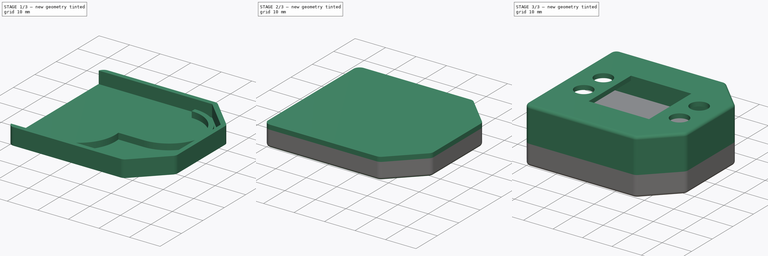
[diagram: build sequence overview — one tinted view per stage of 3, left to right]
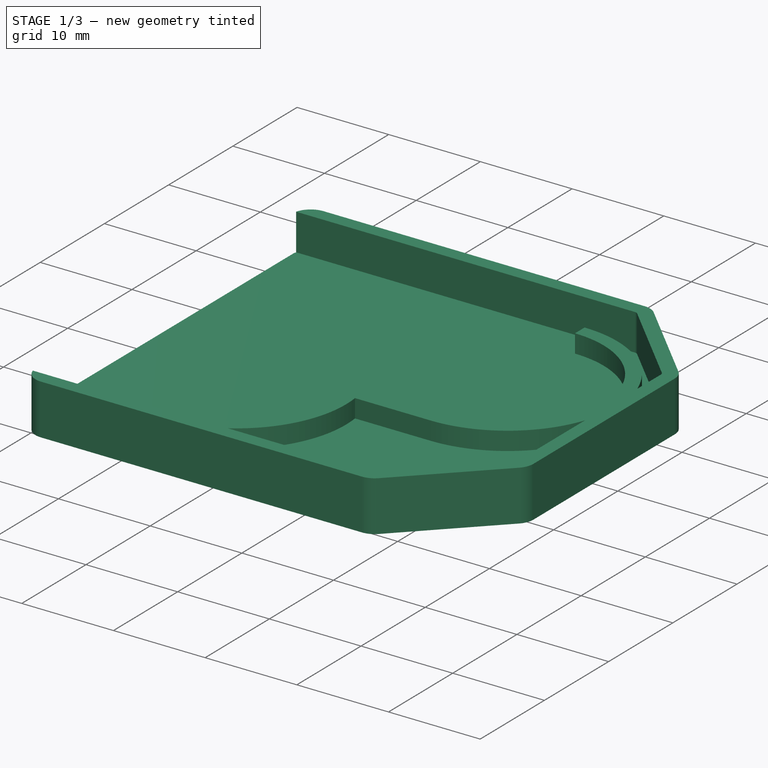
[diagram: stage 1 of 3 — iso view after this stage's code; geometry added in this stage tinted green]
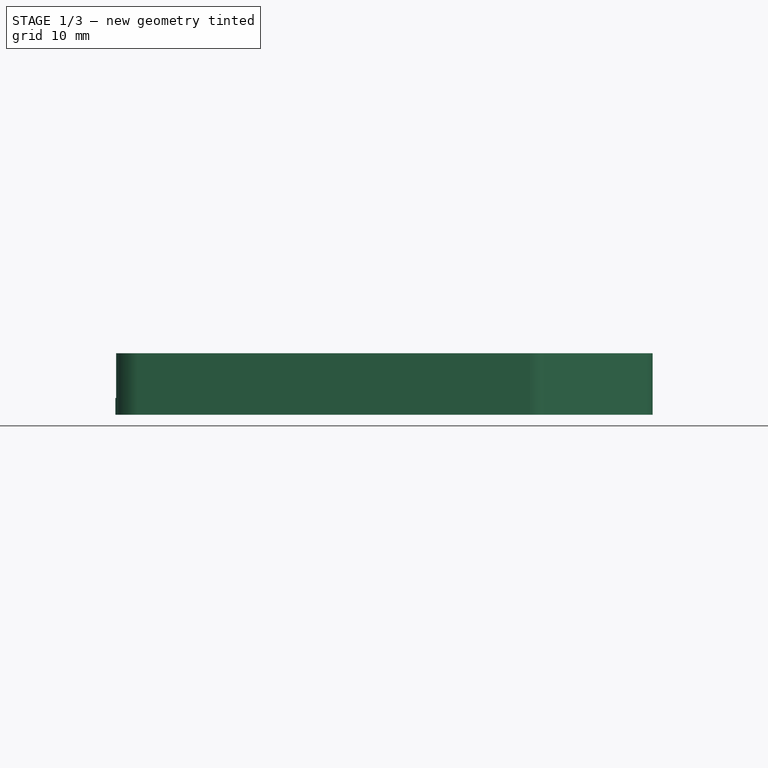
[diagram: stage 1 of 3 — front view after this stage's code; geometry added in this stage tinted green]
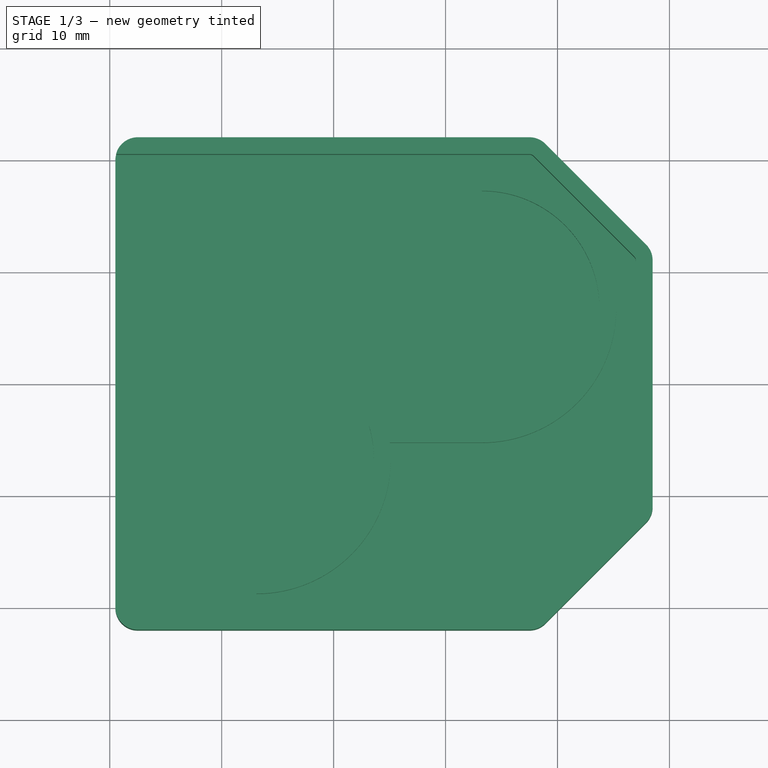
[diagram: stage 1 of 3 — top view after this stage's code; geometry added in this stage tinted green]
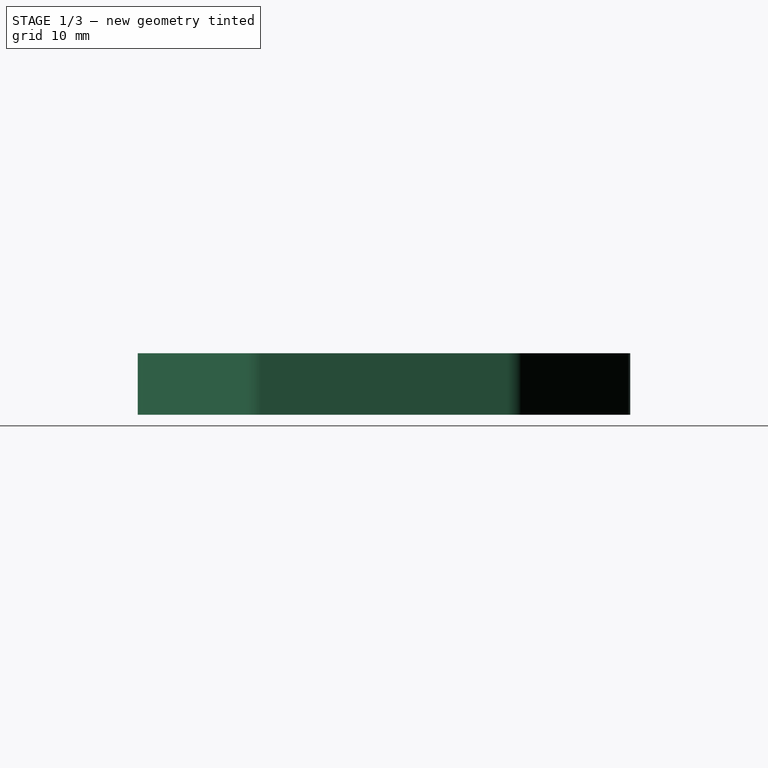
[diagram: stage 1 of 3 — right view after this stage's code; geometry added in this stage tinted green]
FCSTD DOCUMENT  (FreeCAD 0.19R24291 (Git))
Label: notawatch
License: All rights reserved
LicenseURL: http://en.wikipedia.org/wiki/All_rights_reserved
objects: Sketcher::SketchObject×6, PartDesign::Pad×6, PartDesign::Fillet×2, PartDesign::Body×1
note: 23 computed .brp shape members not serialized (recipe doc carries the construction recipe); baked Part::Feature solids carry a one-line shape summary decoded from their .brp

FEATURE [Sketcher::SketchObject] Sketch
  FullyConstrained = true
  MapMode = 5
  Support = -> [XY_Plane]
  sketch-geometry (20):
    g0: LineSegment StartX=-17.5 StartY=-20 StartZ=0 EndX=-17.5 EndY=20 EndZ=0
    g1: LineSegment StartX=-17.5 StartY=-20 StartZ=0 EndX=17.5 EndY=-20 EndZ=0
    g2: LineSegment StartX=-17.5 StartY=20 StartZ=0 EndX=17.5 EndY=20 EndZ=0
    g3: LineSegment StartX=17.5 StartY=20 StartZ=0 EndX=26.5 EndY=11 EndZ=0
    g4: LineSegment StartX=26.5 StartY=11 StartZ=0 EndX=26.5 EndY=-11 EndZ=0
    g5: LineSegment StartX=17.5 StartY=-20 StartZ=0 EndX=26.5 EndY=-11 EndZ=0
    g6: LineSegment StartX=-17.5 StartY=20 StartZ=0 EndX=17.5 EndY=-20 EndZ=0
    g7: LineSegment StartX=-17.5 StartY=-20 StartZ=0 EndX=17.5 EndY=20 EndZ=0
    g8: ArcOfCircle CenterX=-17.5 CenterY=-20 CenterZ=0 NormalX=0 NormalY=0 NormalZ=1 AngleXU=0 Radius=2 StartAngle=3.14159 EndAngle=4.71239
    g9: ArcOfCircle CenterX=-17.5 CenterY=20 CenterZ=0 NormalX=0 NormalY=0 NormalZ=1 AngleXU=0 Radius=2 StartAngle=1.5708 EndAngle=3.14159
    g10: ArcOfCircle CenterX=17.5 CenterY=20 CenterZ=0 NormalX=0 NormalY=0 NormalZ=1 AngleXU=0 Radius=2 StartAngle=0.785398 EndAngle=1.5708
    g11: ArcOfCircle CenterX=26.5 CenterY=11 CenterZ=0 NormalX=0 NormalY=0 NormalZ=1 AngleXU=0 Radius=2 StartAngle=6.2e-15 EndAngle=0.785398
    g12: ArcOfCircle CenterX=26.5 CenterY=-11 CenterZ=0 NormalX=0 NormalY=0 NormalZ=1 AngleXU=0 Radius=2 StartAngle=5.49779 EndAngle=6.28319
    g13: ArcOfCircle CenterX=17.5 CenterY=-20 CenterZ=0 NormalX=0 NormalY=0 NormalZ=1 AngleXU=0 Radius=2 StartAngle=4.71239 EndAngle=5.49779
    g14: LineSegment StartX=-17.5 StartY=-22 StartZ=0 EndX=17.5 EndY=-22 EndZ=0
    g15: LineSegment StartX=28.5 StartY=-11 StartZ=0 EndX=28.5 EndY=11 EndZ=0
    g16: LineSegment StartX=-17.5 StartY=22 StartZ=0 EndX=17.5 EndY=22 EndZ=0
    g17: LineSegment StartX=18.9142 StartY=21.4142 StartZ=0 EndX=27.9142 EndY=12.4142 EndZ=0
    g18: LineSegment StartX=18.9142 StartY=-21.4142 StartZ=0 EndX=27.9142 EndY=-12.4142 EndZ=0
    g19: LineSegment StartX=-19.5 StartY=20 StartZ=0 EndX=-19.5 EndY=-20 EndZ=0
  constraints (46):
    c: Vertical(g0)
    c: Coincident(g1,g0)
    c: Horizontal(g1)
    c: Coincident(g2,g0)
    c: Horizontal(g2)
    c: Coincident(g3,g2)
    c: Vertical(g4)
    c: Coincident(g5,g1)
    c: Coincident(g4,g5)
    c: Coincident(g3,g4)
    c: Equal(g3,g5)
    c: Perpendicular(g5,g3)
    c: Equal(g2,g1)
    c: DistanceX(g1,g1) = 35
    c: Coincident(g0,g6)
    c: Coincident(g2,g7)
    c: Coincident(g1,g6)
    c: Coincident(g0,g7)
    c: PointOnObject(g-1,g6)
    c: PointOnObject(g-1,g7)
    c: DistanceY(g4,g4) = 22
    c: DistanceY(g0,g0) = 40
    c: Coincident(g0,g8)
    c: Coincident(g0,g9)
    c: Coincident(g2,g10)
    c: Coincident(g3,g11)
    c: Coincident(g4,g12)
    c: Coincident(g1,g13)
    c: Horizontal(g14)
    c: Vertical(g15)
    c: Horizontal(g16)
    c: Vertical(g19)
    c: Tangent(g9,g19) = -1.5708
    c: Tangent(g9,g16) = 1.5708
    c: Tangent(g10,g16) = 1.5708
    c: Tangent(g10,g17) = 1.5708
    c: Tangent(g11,g17) = 1.5708
    c: Tangent(g11,g15) = -1.5708
    c: Tangent(g12,g15) = -1.5708
    c: Tangent(g12,g18) = -1.5708
    c: Tangent(g13,g18) = -1.5708
    c: Tangent(g13,g14) = -1.5708
    c: Tangent(g8,g14) = -1.5708
    c: Tangent(g8,g19) = -1.5708
    c: Parallel(g3,g17)
    c: DistanceY(g9,g9) = 2
FEATURE [PartDesign::Pad] Pad
  Direction = (1,1,1)
  Length = 1.5
  Length2 = 100
  Profile = -> Sketch
  Type = 0
FEATURE [Sketcher::SketchObject] Sketch001
  FullyConstrained = true
  MapMode = 5
  Placement = pos=(0,0,1.5) rot=(0,0,1;0rad)
  Support = -> [Pad]
  sketch-geometry (28):
    g0: LineSegment StartX=-17.5 StartY=20 StartZ=0 EndX=-17.5 EndY=-20 EndZ=0
    g1: LineSegment StartX=-17.5 StartY=-20 StartZ=0 EndX=17.5 EndY=-20 EndZ=0
    g2: LineSegment StartX=17.5 StartY=-20 StartZ=0 EndX=26.5 EndY=-11 EndZ=0
    g3: LineSegment StartX=26.5 StartY=-11 StartZ=0 EndX=26.5 EndY=11 EndZ=0
    g4: LineSegment StartX=26.5 StartY=11 StartZ=0 EndX=17.5 EndY=20 EndZ=0
    g5: LineSegment StartX=17.5 StartY=20 StartZ=0 EndX=-17.5 EndY=20 EndZ=0
    g6: LineSegment StartX=-17.5 StartY=20 StartZ=0 EndX=17.5 EndY=-20 EndZ=0
    g7: LineSegment StartX=-17.5 StartY=-20 StartZ=0 EndX=17.5 EndY=20 EndZ=0
    g8: LineSegment StartX=-17.5 StartY=-22 StartZ=0 EndX=17.5 EndY=-22 EndZ=0
    g9: LineSegment StartX=18.9142 StartY=-21.4142 StartZ=0 EndX=27.9142 EndY=-12.4142 EndZ=0
    g10: LineSegment StartX=28.5 StartY=-11 StartZ=0 EndX=28.5 EndY=11 EndZ=0
    g11: LineSegment StartX=27.9142 StartY=12.4142 StartZ=0 EndX=18.9142 EndY=21.4142 EndZ=0
    g12: LineSegment StartX=17.5 StartY=22 StartZ=0 EndX=-17.5 EndY=22 EndZ=0
    g13: ArcOfCircle CenterX=-17.5 CenterY=20 CenterZ=0 NormalX=0 NormalY=0 NormalZ=1 AngleXU=0 Radius=2 StartAngle=1.5708 EndAngle=2.88891
    g14: ArcOfCircle CenterX=-17.5 CenterY=-20 CenterZ=0 NormalX=0 NormalY=0 NormalZ=1 AngleXU=0 Radius=2 StartAngle=3.39427 EndAngle=4.71239
    g15: ArcOfCircle CenterX=17.5 CenterY=-20 CenterZ=0 NormalX=0 NormalY=0 NormalZ=1 AngleXU=0 Radius=2 StartAngle=4.71239 EndAngle=5.49779
    g16: ArcOfCircle CenterX=26.5 CenterY=-11 CenterZ=0 NormalX=0 NormalY=0 NormalZ=1 AngleXU=0 Radius=2 StartAngle=5.49779 EndAngle=6.28319
    g17: ArcOfCircle CenterX=26.5 CenterY=11 CenterZ=0 NormalX=0 NormalY=0 NormalZ=1 AngleXU=0 Radius=2 StartAngle=1e-16 EndAngle=0.785398
    g18: ArcOfCircle CenterX=17.5 CenterY=20 CenterZ=0 NormalX=0 NormalY=0 NormalZ=1 AngleXU=0 Radius=2 StartAngle=0.785398 EndAngle=1.5708
    g19: LineSegment StartX=-19.4365 StartY=-20.5 StartZ=0 EndX=17.5 EndY=-20.5 EndZ=0
    g20: LineSegment StartX=17.8536 StartY=-20.3536 StartZ=0 EndX=26.8536 EndY=-11.3536 EndZ=0
    g21: LineSegment StartX=27 StartY=-11 StartZ=0 EndX=27 EndY=11 EndZ=0
    g22: LineSegment StartX=26.8536 StartY=11.3536 StartZ=0 EndX=17.8536 EndY=20.3536 EndZ=0
    g23: LineSegment StartX=17.5 StartY=20.5 StartZ=0 EndX=-19.4365 EndY=20.5 EndZ=0
    g24: ArcOfCircle CenterX=17.5 CenterY=20 CenterZ=0 NormalX=0 NormalY=0 NormalZ=1 AngleXU=0 Radius=0.5 StartAngle=0.785398 EndAngle=1.5708
    g25: ArcOfCircle CenterX=26.5 CenterY=11 CenterZ=0 NormalX=0 NormalY=0 NormalZ=1 AngleXU=0 Radius=0.5 StartAngle=1.1e-15 EndAngle=0.785398
    g26: ArcOfCircle CenterX=26.5 CenterY=-11 CenterZ=0 NormalX=0 NormalY=0 NormalZ=1 AngleXU=0 Radius=0.5 StartAngle=5.49779 EndAngle=6.28319
    g27: ArcOfCircle CenterX=17.5 CenterY=-20 CenterZ=0 NormalX=0 NormalY=0 NormalZ=1 AngleXU=0 Radius=0.5 StartAngle=4.71239 EndAngle=5.49779
  constraints (64):
    c: Vertical(g0)
    c: Horizontal(g1)
    c: Vertical(g3)
    c: Horizontal(g5)
    c: Coincident(g0,g5)
    c: Coincident(g0,g1)
    c: Coincident(g1,g2)
    c: Coincident(g2,g3)
    c: Coincident(g3,g4)
    c: Coincident(g4,g5)
    c: Perpendicular(g2,g4)
    c: Equal(g2,g4)
    c: Equal(g5,g1)
    c: Coincident(g6,g0)
    c: Coincident(g6,g1)
    c: Coincident(g7,g0)
    c: Coincident(g7,g4)
    c: PointOnObject(g-1,g6)
    c: PointOnObject(g-1,g7)
    c: DistanceX(g1,g1) = 35
    c: DistanceY(g0,g0) = 40
    c: DistanceY(g3,g3) = 22
    c: Horizontal(g8)
    c: Horizontal(g12)
    c: Vertical(g10)
    c: Tangent(g12,g13) = -1.5708
    c: Tangent(g12,g18) = -1.5708
    c: Tangent(g11,g18) = -1.5708
    c: Tangent(g11,g17) = -1.5708
    c: Tangent(g10,g17) = -1.5708
    c: Tangent(g10,g16) = -1.5708
    c: Tangent(g9,g16) = -1.5708
    c: Tangent(g9,g15) = -1.5708
    c: Tangent(g8,g15) = -1.5708
    c: Tangent(g8,g14) = -1.5708
    c: Coincident(g0,g13)
    c: Coincident(g4,g18)
    c: Coincident(g3,g17)
    c: Coincident(g2,g16)
    c: Coincident(g1,g15)
    c: Coincident(g0,g14)
    c: Parallel(g11,g4)
    c: DistanceY(g13,g12) = 2
    c: Horizontal(g19)
    c: Vertical(g21)
    c: Horizontal(g23)
    c: Coincident(g24,g18)
    c: Tangent(g23,g24) = -1.5708
    c: Tangent(g22,g24) = -1.5708
    c: Tangent(g22,g25) = -1.5708
    c: Tangent(g21,g25) = -1.5708
    c: Coincident(g3,g25)
    c: Coincident(g2,g26)
    c: Tangent(g21,g26) = -1.5708
    c: Tangent(g20,g26) = -1.5708
    c: Coincident(g1,g27)
    c: Tangent(g20,g27) = -1.5708
    c: Tangent(g19,g27) = -1.5708
    c: Parallel(g22,g4)
    c: DistanceY(g23,g12) = 1.5
    c: Coincident(g13,g23)
    c: Coincident(g14,g19)
    c: DistanceY(g8,g14) = 2
    c: DistanceY(g8,g14) = 1.5
FEATURE [PartDesign::Pad] Pad001
  BaseFeature = -> Pad
  Direction = (1,1,1)
  Length = 4
  Length2 = 100
  Profile = -> Sketch001
  Type = 0
FEATURE [Sketcher::SketchObject] Sketch002
  ExternalGeometry = -> [Pad001]
  FullyConstrained = true
  MapMode = 5
  Placement = pos=(0,0,1.5) rot=(0,0,1;0rad)
  Support = -> [Pad001]
  sketch-geometry (14):
    g0: ArcOfCircle CenterX=13.25 CenterY=6.75 CenterZ=0 NormalX=0 NormalY=0 NormalZ=1 AngleXU=0 Radius=10.5 StartAngle=4.71239 EndAngle=7.85398
    g1: ArcOfCircle CenterX=-6.89479 CenterY=-6.75 CenterZ=0 NormalX=0 NormalY=0 NormalZ=1 AngleXU=0 Radius=10.5 StartAngle=4.71239 EndAngle=6.57294
    g2: LineSegment StartX=1.8277 StartY=-0.904639 StartZ=0 EndX=4.52751 EndY=0.904639 EndZ=0
    g3: LineSegment StartX=13.25 StartY=17.25 StartZ=0 EndX=13.25 EndY=20.5 EndZ=0
    g4: LineSegment StartX=23.75 StartY=6.75 StartZ=0 EndX=27 EndY=6.75 EndZ=0
    g5: LineSegment StartX=-6.89479 StartY=-17.25 StartZ=0 EndX=-6.89479 EndY=-20.5 EndZ=0
    g6: LineSegment StartX=3.16752 StartY=-3.75 StartZ=0 EndX=13.25 EndY=-3.75 EndZ=0
    g7: ArcOfCircle CenterX=13.25 CenterY=6.75 CenterZ=0 NormalX=0 NormalY=0 NormalZ=1 AngleXU=0 Radius=12 StartAngle=4.71239 EndAngle=7.85398
    g8: ArcOfCircle CenterX=-6.89479 CenterY=-6.75 CenterZ=0 NormalX=0 NormalY=0 NormalZ=1 AngleXU=0 Radius=12 StartAngle=4.71239 EndAngle=6.40851
    g9: LineSegment StartX=5.01109 StartY=-5.25 StartZ=0 EndX=13.25 EndY=-5.25 EndZ=0
    g10: LineSegment StartX=13.25 StartY=-5.25 StartZ=0 EndX=13.25 EndY=-3.75 EndZ=0
    g11: LineSegment StartX=-6.89479 StartY=-18.75 StartZ=0 EndX=-6.89479 EndY=-17.25 EndZ=0
    g12: LineSegment StartX=-6.89479 StartY=-18.75 StartZ=0 EndX=-6.89479 EndY=-17.25 EndZ=0
    g13: LineSegment StartX=13.25 StartY=18.75 StartZ=0 EndX=13.25 EndY=17.25 EndZ=0
  constraints (43):
    c: Radius(g0) = 10.5
    c: Equal(g1,g0)
    c: Vertical(g3)
    c: Vertical(g5)
    c: Horizontal(g4)
    c: PointOnObject(g4,g0)
    c: PointOnObject(g5,g-6)
    c: Perpendicular(g1,g5)
    c: PointOnObject(g4,g-4)
    c: Perpendicular(g0,g4)
    c: PointOnObject(g3,g-5)
    c: Equal(g4,g5)
    c: Equal(g2,g5)
    c: DistanceY(g3,g3) = 3.25
    c: Equal(g3,g4)
    c: Horizontal(g6)
    c: Coincident(g1,g6)
    c: PointOnObject(g0,g3)
    c: Tangent(g0,g6) = -1.5708
    c: Coincident(g7,g0)
    c: PointOnObject(g7,g3)
    c: Coincident(g8,g1)
    c: PointOnObject(g8,g5)
    c: Coincident(g9,g8)
    c: Horizontal(g9)
    c: Coincident(g7,g9)
    c: Coincident(g10,g7)
    c: Coincident(g10,g0)
    c: Vertical(g10)
    c: Coincident(g11,g8)
    c: Equal(g12,g10)
    c: Coincident(g12,g8)
    c: DistanceY(g10,g10) = 1.5
    c: Perpendicular(g0,g2)
    c: PointOnObject(g3,g0)
    c: Perpendicular(g0,g3)
    c: PointOnObject(g2,g0)
    c: Perpendicular(g2,g1) = 1.5708
    c: Coincident(g11,g12)
    c: Coincident(g1,g11)
    c: Coincident(g1,g5)
    c: Coincident(g13,g7)
    c: Coincident(g13,g0)
FEATURE [PartDesign::Pad] Pad002
  BaseFeature = -> Pad001
  Direction = (1,1,1)
  Length = 2
  Length2 = 100
  Profile = -> Sketch002
  Type = 0
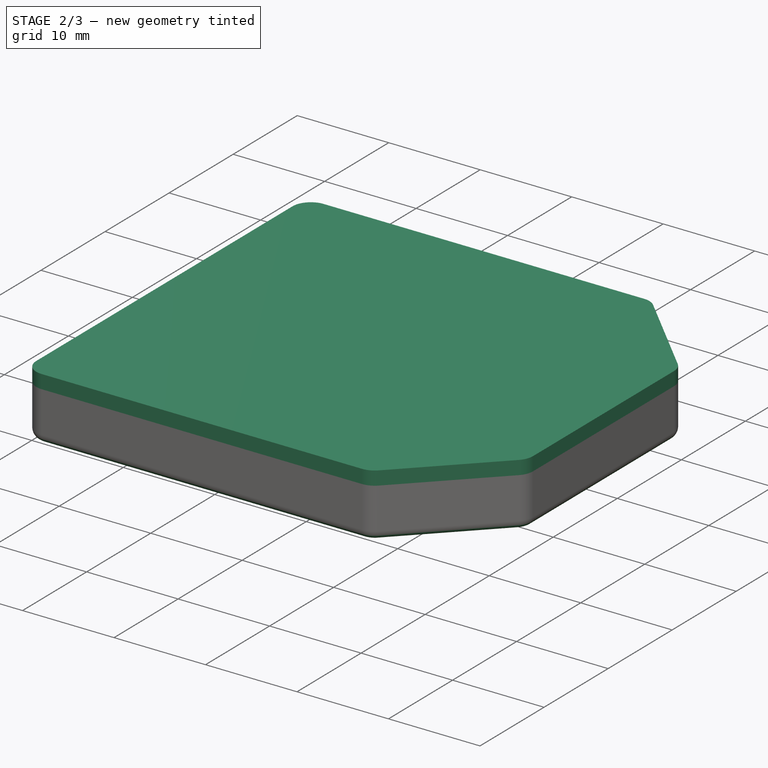
[diagram: stage 2 of 3 — iso view after this stage's code; geometry added in this stage tinted green]
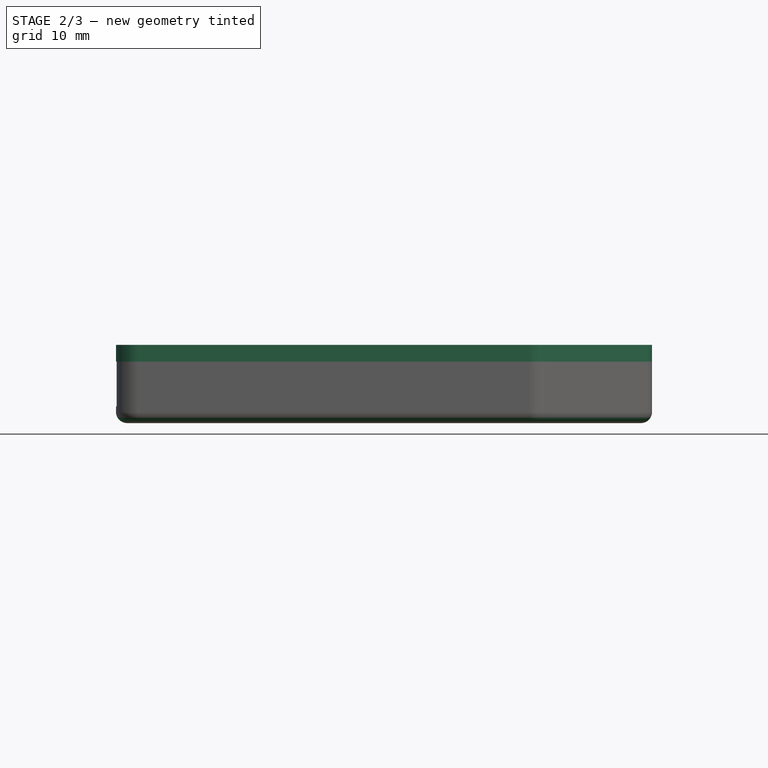
[diagram: stage 2 of 3 — front view after this stage's code; geometry added in this stage tinted green]
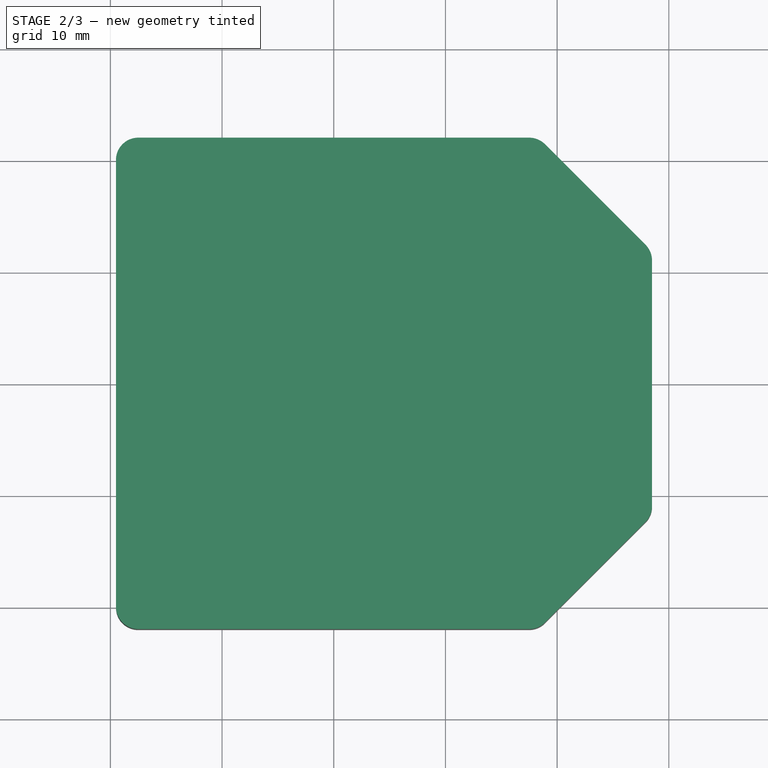
[diagram: stage 2 of 3 — top view after this stage's code; geometry added in this stage tinted green]
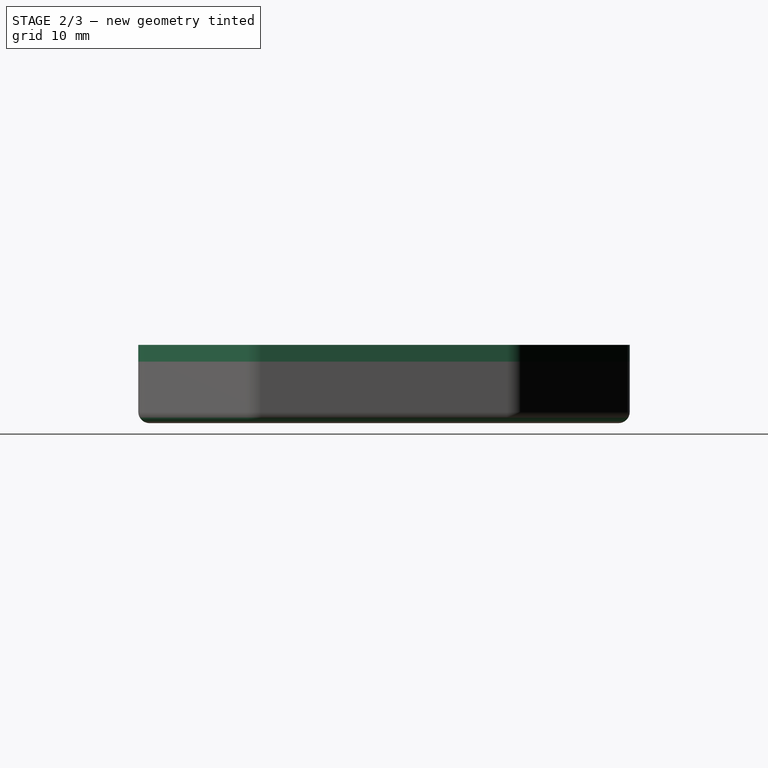
[diagram: stage 2 of 3 — right view after this stage's code; geometry added in this stage tinted green]
FEATURE [Sketcher::SketchObject] Sketch003
  FullyConstrained = false
  MapMode = 5
  Placement = pos=(0,0,5.5) rot=(0,0,1;0rad)
  Support = -> [Pad002]
  sketch-geometry (20):
    g0: LineSegment StartX=-17.5 StartY=20 StartZ=0 EndX=-17.5 EndY=-20 EndZ=0
    g1: LineSegment StartX=-17.5 StartY=-20 StartZ=0 EndX=17.5 EndY=-20 EndZ=0
    g2: LineSegment StartX=17.5 StartY=-20 StartZ=0 EndX=26.5 EndY=-11 EndZ=0
    g3: LineSegment StartX=26.5 StartY=-11 StartZ=0 EndX=26.5 EndY=11 EndZ=0
    g4: LineSegment StartX=26.5 StartY=11 StartZ=0 EndX=17.5 EndY=20 EndZ=0
    g5: LineSegment StartX=17.5 StartY=20 StartZ=0 EndX=-17.5 EndY=20 EndZ=0
    g6: LineSegment StartX=-17.5 StartY=20 StartZ=0 EndX=17.5 EndY=-20 EndZ=0
    g7: LineSegment StartX=-17.5 StartY=-20 StartZ=0 EndX=17.5 EndY=20 EndZ=0
    g8: ArcOfCircle CenterX=-17.5 CenterY=20 CenterZ=0 NormalX=0 NormalY=0 NormalZ=1 AngleXU=0 Radius=2 StartAngle=1.5708 EndAngle=3.14159
    g9: ArcOfCircle CenterX=17.5 CenterY=20 CenterZ=0 NormalX=0 NormalY=0 NormalZ=1 AngleXU=0 Radius=2 StartAngle=0.785398 EndAngle=1.5708
    g10: ArcOfCircle CenterX=26.5 CenterY=11 CenterZ=0 NormalX=0 NormalY=0 NormalZ=1 AngleXU=0 Radius=2 StartAngle=4e-16 EndAngle=0.785398
    g11: ArcOfCircle CenterX=26.5 CenterY=-11 CenterZ=0 NormalX=0 NormalY=0 NormalZ=1 AngleXU=0 Radius=2 StartAngle=5.49779 EndAngle=6.28319
    g12: ArcOfCircle CenterX=17.5 CenterY=-20 CenterZ=0 NormalX=0 NormalY=0 NormalZ=1 AngleXU=0 Radius=2 StartAngle=4.71239 EndAngle=5.49779
    g13: ArcOfCircle CenterX=-17.5 CenterY=-20 CenterZ=0 NormalX=0 NormalY=0 NormalZ=1 AngleXU=0 Radius=2 StartAngle=3.14159 EndAngle=4.71239
    g14: LineSegment StartX=-19.5 StartY=20 StartZ=0 EndX=-19.5 EndY=-20 EndZ=0
    g15: LineSegment StartX=17.5 StartY=22 StartZ=0 EndX=-17.5 EndY=22 EndZ=0
    g16: LineSegment StartX=18.9142 StartY=21.4142 StartZ=0 EndX=27.9142 EndY=12.4142 EndZ=0
    g17: LineSegment StartX=28.5 StartY=11 StartZ=0 EndX=28.5 EndY=-11 EndZ=0
    g18: LineSegment StartX=18.9142 StartY=-21.4142 StartZ=0 EndX=27.9142 EndY=-12.4142 EndZ=0
    g19: LineSegment StartX=17.5 StartY=-22 StartZ=0 EndX=-17.5 EndY=-22 EndZ=0
  constraints (44):
    c: Vertical(g0)
    c: Coincident(g0,g1)
    c: Horizontal(g1)
    c: Coincident(g1,g2)
    c: Coincident(g2,g3)
    c: Vertical(g3)
    c: Coincident(g3,g4)
    c: Coincident(g4,g5)
    c: Coincident(g5,g0)
    c: Horizontal(g5)
    c: Perpendicular(g2,g4)
    c: Equal(g5,g1)
    c: Equal(g2,g4)
    c: Coincident(g6,g0)
    c: Coincident(g6,g1)
    c: Coincident(g7,g0)
    c: Coincident(g7,g4)
    c: PointOnObject(g-1,g6)
    c: PointOnObject(g-1,g7)
    c: DistanceX(g1,g1) = 35
    c: DistanceY(g0,g0) = 40
    c: DistanceY(g3,g3) = 22
    c: Coincident(g0,g8)
    c: Coincident(g4,g9)
    c: Coincident(g3,g10)
    c: Coincident(g2,g11)
    c: Coincident(g1,g12)
    c: Coincident(g0,g13)
    c: Vertical(g14)
    c: Horizontal(g15)
    c: Vertical(g17)
    c: Horizontal(g19)
    c: Tangent(g13,g14) = -1.5708
    c: Tangent(g8,g14) = -1.5708
    c: Tangent(g8,g15) = -1.5708
    c: Tangent(g9,g15) = -1.5708
    c: Tangent(g9,g16) = 1.5708
    c: Tangent(g10,g16) = 1.5708
    c: Tangent(g10,g17) = 1.5708
    c: Tangent(g11,g17) = 1.5708
    c: Tangent(g11,g18) = -1.5708
    c: Tangent(g12,g18) = -1.5708
    c: Tangent(g12,g19) = 1.5708
    c: Coincident(g13,g19)
FEATURE [PartDesign::Pad] Pad003
  BaseFeature = -> Pad002
  Direction = (1,1,1)
  Length = 1.5
  Length2 = 100
  Profile = -> Sketch003
  Type = 0
FEATURE [PartDesign::Fillet] Fillet
  Base = -> Pad003 [Face4]
  BaseFeature = -> Pad003
  Radius = 1
  SupportTransform = false
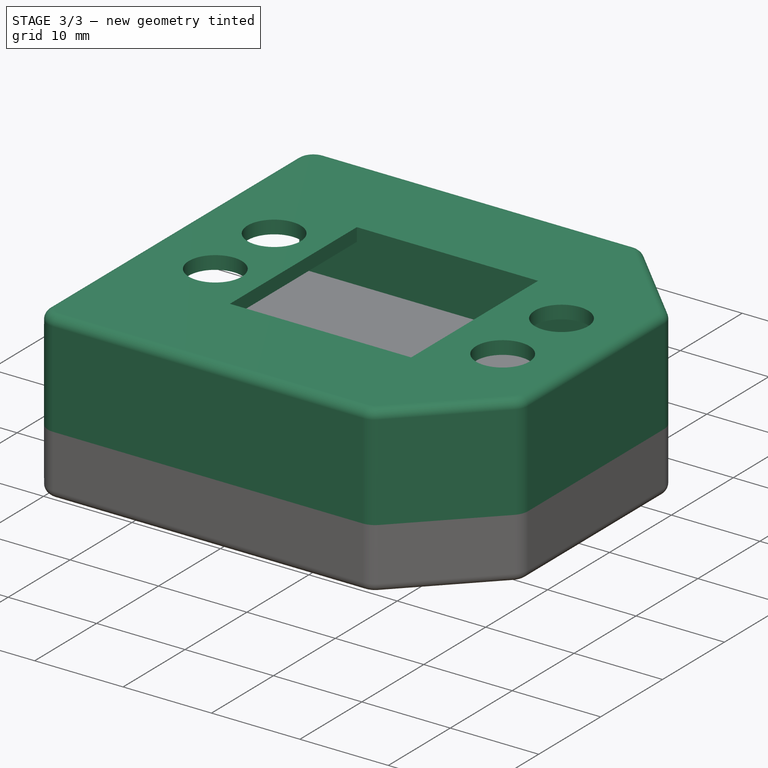
[diagram: stage 3 of 3 — iso view after this stage's code; geometry added in this stage tinted green]
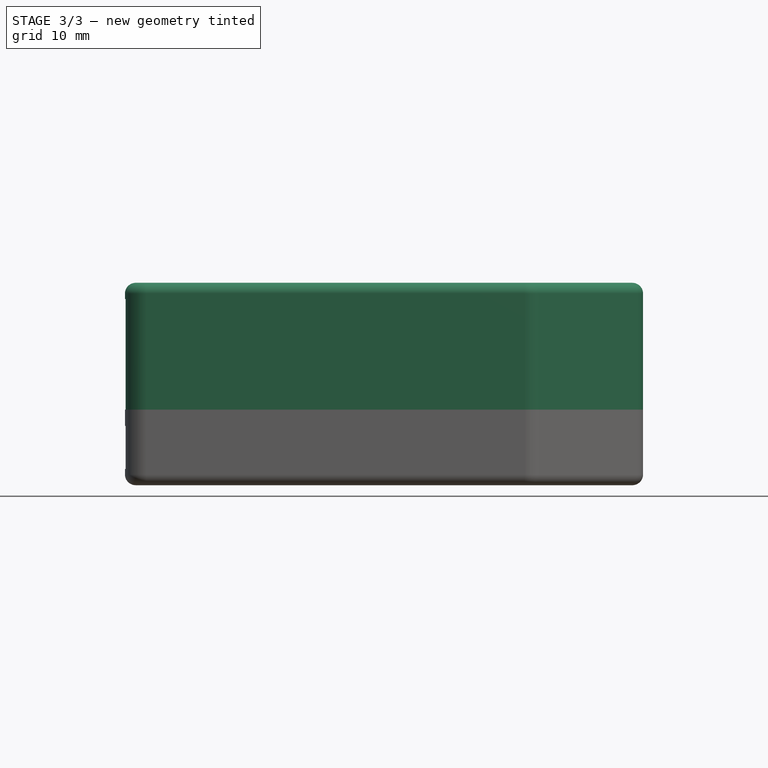
[diagram: stage 3 of 3 — front view after this stage's code; geometry added in this stage tinted green]
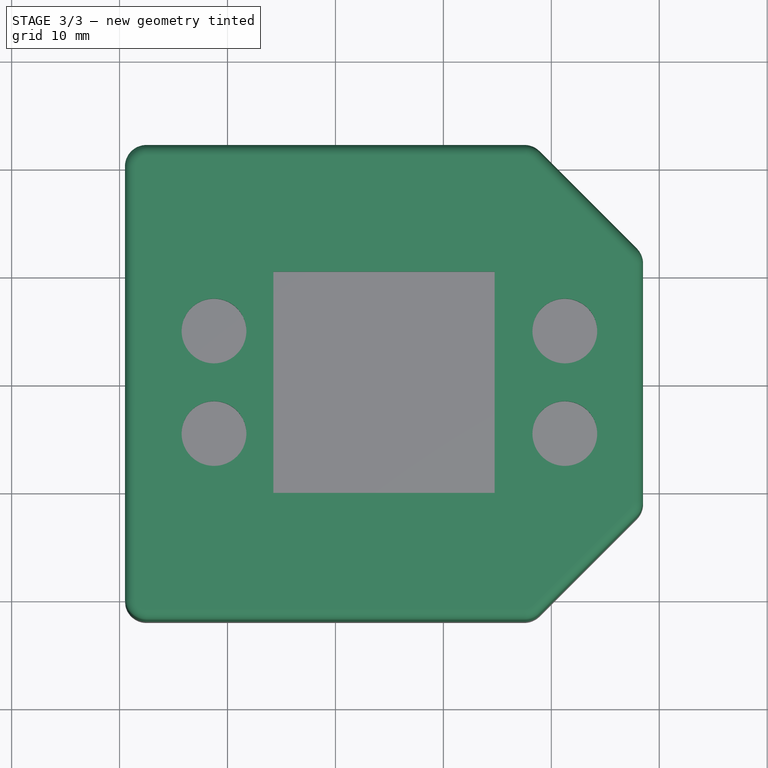
[diagram: stage 3 of 3 — top view after this stage's code; geometry added in this stage tinted green]
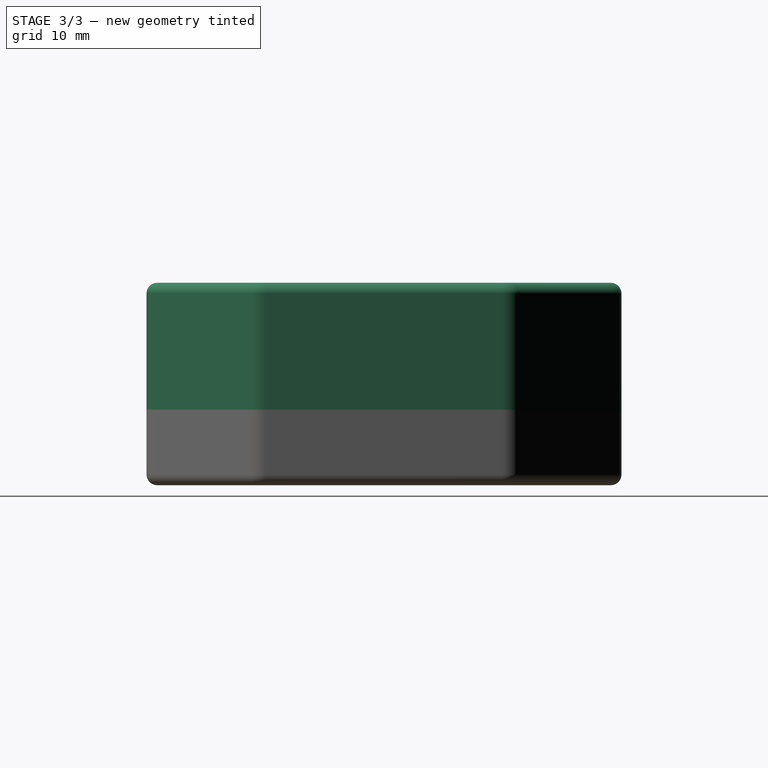
[diagram: stage 3 of 3 — right view after this stage's code; geometry added in this stage tinted green]
FEATURE [Sketcher::SketchObject] Sketch004
  FullyConstrained = true
  MapMode = 5
  Placement = pos=(0,0,7) rot=(0,0,1;0rad)
  Support = -> [Fillet]
  sketch-geometry (28):
    g0: LineSegment StartX=-17.5 StartY=20 StartZ=0 EndX=-17.5 EndY=-20 EndZ=0
    g1: LineSegment StartX=-17.5 StartY=-20 StartZ=0 EndX=17.5 EndY=-20 EndZ=0
    g2: LineSegment StartX=17.5 StartY=-20 StartZ=0 EndX=26.5 EndY=-11 EndZ=0
    g3: LineSegment StartX=26.5 StartY=-11 StartZ=0 EndX=26.5 EndY=11 EndZ=0
    g4: LineSegment StartX=26.5 StartY=11 StartZ=0 EndX=17.5 EndY=20 EndZ=0
    g5: LineSegment StartX=17.5 StartY=20 StartZ=0 EndX=-17.5 EndY=20 EndZ=0
    g6: LineSegment StartX=-17.5 StartY=20 StartZ=0 EndX=17.5 EndY=-20 EndZ=0
    g7: LineSegment StartX=-17.5 StartY=-20 StartZ=0 EndX=17.5 EndY=20 EndZ=0
    g8: ArcOfCircle CenterX=-17.5 CenterY=20 CenterZ=0 NormalX=0 NormalY=0 NormalZ=1 AngleXU=0 Radius=2 StartAngle=1.5708 EndAngle=2.88891
    g9: ArcOfCircle CenterX=17.5 CenterY=20 CenterZ=0 NormalX=0 NormalY=0 NormalZ=1 AngleXU=0 Radius=2 StartAngle=0.785398 EndAngle=1.5708
    g10: ArcOfCircle CenterX=17.5 CenterY=20 CenterZ=0 NormalX=0 NormalY=0 NormalZ=1 AngleXU=0 Radius=0.5 StartAngle=0.785398 EndAngle=1.5708
    g11: ArcOfCircle CenterX=26.5 CenterY=11 CenterZ=0 NormalX=0 NormalY=0 NormalZ=1 AngleXU=0 Radius=2 StartAngle=0 EndAngle=0.785398
    g12: ArcOfCircle CenterX=26.5 CenterY=11 CenterZ=0 NormalX=0 NormalY=0 NormalZ=1 AngleXU=0 Radius=0.5 StartAngle=-9e-16 EndAngle=0.785398
    g13: ArcOfCircle CenterX=26.5 CenterY=-11 CenterZ=0 NormalX=0 NormalY=0 NormalZ=1 AngleXU=0 Radius=2 StartAngle=5.49779 EndAngle=6.28319
    g14: ArcOfCircle CenterX=26.5 CenterY=-11 CenterZ=0 NormalX=0 NormalY=0 NormalZ=1 AngleXU=0 Radius=0.5 StartAngle=5.49779 EndAngle=6.28319
    g15: ArcOfCircle CenterX=17.5 CenterY=-20 CenterZ=0 NormalX=0 NormalY=0 NormalZ=1 AngleXU=0 Radius=2 StartAngle=4.71239 EndAngle=5.49779
    g16: ArcOfCircle CenterX=17.5 CenterY=-20 CenterZ=0 NormalX=0 NormalY=0 NormalZ=1 AngleXU=0 Radius=0.5 StartAngle=4.71239 EndAngle=5.49779
    g17: ArcOfCircle CenterX=-17.5 CenterY=-20 CenterZ=0 NormalX=0 NormalY=0 NormalZ=1 AngleXU=0 Radius=2 StartAngle=3.39427 EndAngle=4.71239
    g18: LineSegment StartX=-19.4365 StartY=20.5 StartZ=0 EndX=17.5 EndY=20.5 EndZ=0
    g19: LineSegment StartX=17.5 StartY=22 StartZ=0 EndX=-17.5 EndY=22 EndZ=0
    g20: LineSegment StartX=17.8536 StartY=20.3536 StartZ=0 EndX=26.8536 EndY=11.3536 EndZ=0
    g21: LineSegment StartX=27.9142 StartY=12.4142 StartZ=0 EndX=18.9142 EndY=21.4142 EndZ=0
    g22: LineSegment StartX=27 StartY=11 StartZ=0 EndX=27 EndY=-11 EndZ=0
    g23: LineSegment StartX=28.5 StartY=-11 StartZ=0 EndX=28.5 EndY=11 EndZ=0
    g24: LineSegment StartX=17.8536 StartY=-20.3536 StartZ=0 EndX=26.8536 EndY=-11.3536 EndZ=0
    g25: LineSegment StartX=27.9142 StartY=-12.4142 StartZ=0 EndX=18.9142 EndY=-21.4142 EndZ=0
    g26: LineSegment StartX=-19.4365 StartY=-20.5 StartZ=0 EndX=17.5 EndY=-20.5 EndZ=0
    g27: LineSegment StartX=-17.5 StartY=-22 StartZ=0 EndX=17.5 EndY=-22 EndZ=0
  constraints (64):
    c: Vertical(g0)
    c: Coincident(g0,g1)
    c: Horizontal(g1)
    c: Coincident(g1,g2)
    c: Coincident(g2,g3)
    c: Vertical(g3)
    c: Coincident(g3,g4)
    c: Coincident(g4,g5)
    c: Coincident(g5,g0)
    c: Horizontal(g5)
    c: Coincident(g6,g0)
    c: Coincident(g6,g1)
    c: Coincident(g7,g0)
    c: Coincident(g7,g4)
    c: PointOnObject(g-1,g6)
    c: PointOnObject(g-1,g7)
    c: DistanceY(g0,g0) = 40
    c: DistanceX(g1,g1) = 35
    c: DistanceY(g3,g3) = 22
    c: Perpendicular(g2,g4)
    c: Equal(g4,g2)
    c: Equal(g1,g5)
    c: Coincident(g0,g8)
    c: Coincident(g4,g9)
    c: Coincident(g4,g10)
    c: Coincident(g3,g11)
    c: Coincident(g3,g12)
    c: Coincident(g2,g13)
    c: Coincident(g2,g14)
    c: Coincident(g1,g15)
    c: Coincident(g1,g16)
    c: Coincident(g0,g17)
    c: Horizontal(g18)
    c: Horizontal(g19)
    c: Vertical(g22)
    c: Vertical(g23)
    c: Horizontal(g26)
    c: Horizontal(g27)
    c: Tangent(g17,g27) = -1.5708
    c: Tangent(g8,g19) = -1.5708
    c: Tangent(g9,g19) = -1.5708
    c: Tangent(g10,g18) = 1.5708
    c: Tangent(g9,g21) = -1.5708
    c: Tangent(g10,g20) = 1.5708
    c: Tangent(g11,g21) = -1.5708
    c: Tangent(g12,g20) = 1.5708
    c: Tangent(g12,g22) = 1.5708
    c: Tangent(g11,g23) = -1.5708
    c: Tangent(g14,g22) = 1.5708
    c: Tangent(g13,g23) = -1.5708
    c: Tangent(g14,g24) = -1.5708
    c: Tangent(g13,g25) = 1.5708
    c: Tangent(g16,g24) = -1.5708
    c: Tangent(g15,g25) = 1.5708
    c: Tangent(g16,g26) = -1.5708
    c: Tangent(g15,g27) = -1.5708
    c: Parallel(g20,g4)
    c: Parallel(g20,g21)
    c: DistanceY(g8,g8) = 2
    c: Coincident(g8,g18)
    c: DistanceY(g8,g8) = 1.5
    c: DistanceY(g17,g17) = 2
    c: Coincident(g17,g26)
    c: DistanceY(g17,g17) = 1.5
FEATURE [PartDesign::Pad] Pad004
  BaseFeature = -> Fillet
  Direction = (1,1,1)
  Length = 10.25
  Length2 = 100
  Profile = -> Sketch004
  Type = 0
FEATURE [Sketcher::SketchObject] Sketch005
  FullyConstrained = true
  MapMode = 5
  Placement = pos=(0,0,17.25) rot=(0,0,1;0rad)
  Support = -> [Pad004]
  sketch-geometry (60):
    g0: LineSegment StartX=-17.5 StartY=20 StartZ=0 EndX=-17.5 EndY=-20 EndZ=0
    g1: LineSegment StartX=-17.5 StartY=-20 StartZ=0 EndX=17.5 EndY=-20 EndZ=0
    g2: LineSegment StartX=17.5 StartY=-20 StartZ=0 EndX=26.5 EndY=-11 EndZ=0
    g3: LineSegment StartX=26.5 StartY=-11 StartZ=0 EndX=26.5 EndY=11 EndZ=0
    g4: LineSegment StartX=26.5 StartY=11 StartZ=0 EndX=17.5 EndY=20 EndZ=0
    g5: LineSegment StartX=17.5 StartY=20 StartZ=0 EndX=-17.5 EndY=20 EndZ=0
    g6: LineSegment StartX=-17.5 StartY=20 StartZ=0 EndX=17.5 EndY=-20 EndZ=0
    g7: LineSegment StartX=-17.5 StartY=-20 StartZ=0 EndX=17.5 EndY=20 EndZ=0
    g8: ArcOfCircle CenterX=-17.5 CenterY=20 CenterZ=0 NormalX=0 NormalY=0 NormalZ=1 AngleXU=0 Radius=2 StartAngle=1.5708 EndAngle=3.14159
    g9: ArcOfCircle CenterX=17.5 CenterY=20 CenterZ=0 NormalX=0 NormalY=0 NormalZ=1 AngleXU=0 Radius=2 StartAngle=0.785398 EndAngle=1.5708
    g10: ArcOfCircle CenterX=26.5 CenterY=11 CenterZ=0 NormalX=0 NormalY=0 NormalZ=1 AngleXU=0 Radius=2 StartAngle=4e-16 EndAngle=0.785398
    g11: ArcOfCircle CenterX=26.5 CenterY=-11 CenterZ=0 NormalX=0 NormalY=0 NormalZ=1 AngleXU=0 Radius=2 StartAngle=5.49779 EndAngle=6.28319
    g12: ArcOfCircle CenterX=17.5 CenterY=-20 CenterZ=0 NormalX=0 NormalY=0 NormalZ=1 AngleXU=0 Radius=2 StartAngle=4.71239 EndAngle=5.49779
    g13: ArcOfCircle CenterX=-17.5 CenterY=-20 CenterZ=0 NormalX=0 NormalY=0 NormalZ=1 AngleXU=0 Radius=2 StartAngle=3.14159 EndAngle=4.71239
    g14: LineSegment StartX=-19.5 StartY=20 StartZ=0 EndX=-19.5 EndY=-20 EndZ=0
    g15: LineSegment StartX=-17.5 StartY=-22 StartZ=0 EndX=17.5 EndY=-22 EndZ=0
    g16: LineSegment StartX=18.9142 StartY=-21.4142 StartZ=0 EndX=27.9142 EndY=-12.4142 EndZ=0
    g17: LineSegment StartX=28.5 StartY=-11 StartZ=0 EndX=28.5 EndY=11 EndZ=0
    g18: LineSegment StartX=27.9142 StartY=12.4142 StartZ=0 EndX=18.9142 EndY=21.4142 EndZ=0
    g19: LineSegment StartX=17.5 StartY=22 StartZ=0 EndX=-17.5 EndY=22 EndZ=0
    g20: LineSegment StartX=-5.5 StartY=10 StartZ=0 EndX=14.5 EndY=10 EndZ=0
    g21: LineSegment StartX=14.5 StartY=10 StartZ=0 EndX=14.5 EndY=-10 EndZ=0
    g22: LineSegment StartX=14.5 StartY=-10 StartZ=0 EndX=-5.5 EndY=-10 EndZ=0
    g23: LineSegment StartX=-5.5 StartY=-10 StartZ=0 EndX=-5.5 EndY=10 EndZ=0
    g24: LineSegment StartX=-5.75 StartY=10.25 StartZ=0 EndX=14.75 EndY=10.25 EndZ=0
    g25: LineSegment StartX=14.75 StartY=10.25 StartZ=0 EndX=14.75 EndY=-10.25 EndZ=0
    g26: LineSegment StartX=14.75 StartY=-10.25 StartZ=0 EndX=-5.75 EndY=-10.25 EndZ=0
    g27: LineSegment StartX=-5.75 StartY=-10.25 StartZ=0 EndX=-5.75 EndY=10.25 EndZ=0
    g28: LineSegment StartX=-5.5 StartY=10 StartZ=0 EndX=-5.5 EndY=10.25 EndZ=0
    g29: LineSegment StartX=-5.5 StartY=10 StartZ=0 EndX=-5.75 EndY=10 EndZ=0
    g30: LineSegment StartX=14.5 StartY=-10 StartZ=0 EndX=14.75 EndY=-10 EndZ=0
    g31: LineSegment StartX=14.5 StartY=-10 StartZ=0 EndX=14.5 EndY=-10.25 EndZ=0
    g32: LineSegment StartX=-16 StartY=8.5 StartZ=0 EndX=-6.5 EndY=8.5 EndZ=0
    g33: LineSegment StartX=-6.5 StartY=8.5 StartZ=0 EndX=-6.5 EndY=1 EndZ=0
    g34: LineSegment StartX=-6.5 StartY=1 StartZ=0 EndX=-16 EndY=1 EndZ=0
    g35: LineSegment StartX=-16 StartY=1 StartZ=0 EndX=-16 EndY=8.5 EndZ=0
    g36: LineSegment StartX=-16 StartY=-1 StartZ=0 EndX=-6.5 EndY=-1 EndZ=0
    g37: LineSegment StartX=-6.5 StartY=-1 StartZ=0 EndX=-6.5 EndY=-8.5 EndZ=0
    g38: LineSegment StartX=-6.5 StartY=-8.5 StartZ=0 EndX=-16 EndY=-8.5 EndZ=0
    g39: LineSegment StartX=-16 StartY=-8.5 StartZ=0 EndX=-16 EndY=-1 EndZ=0
    g40: LineSegment StartX=16.5 StartY=8.5 StartZ=0 EndX=26 EndY=8.5 EndZ=0
    g41: LineSegment StartX=26 StartY=8.5 StartZ=0 EndX=26 EndY=1 EndZ=0
    g42: LineSegment StartX=26 StartY=1 StartZ=0 EndX=16.5 EndY=1 EndZ=0
    g43: LineSegment StartX=16.5 StartY=1 StartZ=0 EndX=16.5 EndY=8.5 EndZ=0
    g44: LineSegment StartX=16.5 StartY=-1 StartZ=0 EndX=26 EndY=-1 EndZ=0
    g45: LineSegment StartX=26 StartY=-1 StartZ=0 EndX=26 EndY=-8.5 EndZ=0
    g46: LineSegment StartX=26 StartY=-8.5 StartZ=0 EndX=16.5 EndY=-8.5 EndZ=0
    g47: LineSegment StartX=16.5 StartY=-8.5 StartZ=0 EndX=16.5 EndY=-1 EndZ=0
    g48: LineSegment StartX=-16 StartY=8.5 StartZ=0 EndX=-6.5 EndY=1 EndZ=0
    g49: LineSegment StartX=-6.5 StartY=8.5 StartZ=0 EndX=-16 EndY=1 EndZ=0
    g50: LineSegment StartX=-16 StartY=-1 StartZ=0 EndX=-6.5 EndY=-8.5 EndZ=0
    g51: LineSegment StartX=-6.5 StartY=-1 StartZ=0 EndX=-16 EndY=-8.5 EndZ=0
    g52: LineSegment StartX=16.5 StartY=8.5 StartZ=0 EndX=26 EndY=1 EndZ=0
    g53: LineSegment StartX=26 StartY=8.5 StartZ=0 EndX=16.5 EndY=1 EndZ=0
    g54: LineSegment StartX=16.5 StartY=-1 StartZ=0 EndX=26 EndY=-8.5 EndZ=0
    g55: LineSegment StartX=26 StartY=-1 StartZ=0 EndX=16.5 EndY=-8.5 EndZ=0
    g56: Circle CenterX=-11.25 CenterY=4.75 CenterZ=0 NormalX=0 NormalY=0 NormalZ=1 AngleXU=0 Radius=3
    g57: Circle CenterX=-11.25 CenterY=-4.75 CenterZ=0 NormalX=0 NormalY=0 NormalZ=1 AngleXU=0 Radius=3
    g58: Circle CenterX=21.25 CenterY=4.75 CenterZ=0 NormalX=0 NormalY=0 NormalZ=1 AngleXU=0 Radius=3
    g59: Circle CenterX=21.25 CenterY=-4.75 CenterZ=0 NormalX=0 NormalY=0 NormalZ=1 AngleXU=0 Radius=3
  constraints (158):
    c: Vertical(g0)
    c: Coincident(g0,g1)
    c: Horizontal(g1)
    c: Coincident(g1,g2)
    c: Coincident(g2,g3)
    c: Vertical(g3)
    c: Coincident(g3,g4)
    c: Coincident(g4,g5)
    c: Coincident(g5,g0)
    c: Horizontal(g5)
    c: Equal(g5,g1)
    c: Equal(g2,g4)
    c: Perpendicular(g4,g2)
    c: DistanceY(g0,g0) = 40
    c: DistanceX(g1,g1) = 35
    c: DistanceY(g3,g3) = 22
    c: Coincident(g6,g0)
    c: Coincident(g6,g1)
    c: Coincident(g7,g0)
    c: Coincident(g7,g4)
    c: PointOnObject(g-1,g6)
    c: PointOnObject(g-1,g7)
    c: Coincident(g8,g0)
    c: Coincident(g9,g4)
    c: Coincident(g10,g3)
    c: Coincident(g11,g2)
    c: Coincident(g12,g1)
    c: Coincident(g13,g0)
    c: Vertical(g14)
    c: Horizontal(g15)
    c: Vertical(g17)
    c: Horizontal(g19)
    c: Tangent(g8,g14) = -1.5708
    c: Tangent(g13,g14) = -1.5708
    c: Tangent(g13,g15) = -1.5708
    c: Tangent(g12,g15) = -1.5708
    c: Tangent(g12,g16) = -1.5708
    c: Tangent(g11,g16) = -1.5708
    c: Tangent(g11,g17) = -1.5708
    c: Tangent(g10,g17) = -1.5708
    c: Tangent(g10,g18) = -1.5708
    c: Tangent(g9,g18) = -1.5708
    c: Tangent(g9,g19) = -1.5708
    c: Tangent(g8,g19) = -1.5708
    c: Parallel(g18,g4)
    c: DistanceY(g8,g8) = 2
    c: Coincident(g20,g21)
    c: Coincident(g21,g22)
    c: Coincident(g22,g23)
    c: Coincident(g23,g20)
    c: Horizontal(g20)
    c: Horizontal(g22)
    c: Vertical(g21)
    c: Vertical(g23)
    c: DistanceX(g13,g22) = 12
    c: DistanceY(g13,g22) = 10
    c: DistanceX(g22,g22) = 20
    c: DistanceY(g23,g23) = 20
    c: Coincident(g24,g25)
    c: Coincident(g25,g26)
    c: Coincident(g26,g27)
    c: Coincident(g27,g24)
    c: Horizontal(g24)
    c: Horizontal(g26)
    c: Vertical(g25)
    c: Vertical(g27)
    c: Coincident(g28,g20)
    c: PointOnObject(g28,g24)
    c: Vertical(g28)
    c: Coincident(g29,g20)
    c: PointOnObject(g29,g27)
    c: Horizontal(g29)
    c: Coincident(g30,g21)
    c: PointOnObject(g30,g25)
    c: Horizontal(g30)
    c: Coincident(g31,g21)
    c: PointOnObject(g31,g26)
    c: Vertical(g31)
    c: Equal(g30,g31)
    c: Equal(g31,g29)
    c: Equal(g29,g28)
    c: DistanceY(g28,g28) = 0.25
    c: Coincident(g32,g33)
    c: Coincident(g33,g34)
    c: Coincident(g34,g35)
    c: Coincident(g35,g32)
    c: Horizontal(g32)
    c: Horizontal(g34)
    c: Vertical(g33)
    c: Vertical(g35)
    c: Coincident(g36,g37)
    c: Coincident(g37,g38)
    c: Coincident(g38,g39)
    c: Coincident(g39,g36)
    c: Horizontal(g36)
    c: Horizontal(g38)
    c: Vertical(g37)
    c: Vertical(g39)
    c: Coincident(g40,g41)
    c: Coincident(g41,g42)
    c: Coincident(g42,g43)
    c: Coincident(g43,g40)
    c: Horizontal(g40)
    c: Horizontal(g42)
    c: Vertical(g41)
    c: Vertical(g43)
    c: Coincident(g44,g45)
    c: Coincident(g45,g46)
    c: Coincident(g46,g47)
    c: Coincident(g47,g44)
    c: Horizontal(g44)
    c: Horizontal(g46)
    c: Vertical(g45)
    c: Vertical(g47)
    c: Equal(g33,g37)
    c: Equal(g41,g45)
    c: Equal(g42,g44)
    c: Equal(g34,g36)
    c: Equal(g32,g40)
    c: Equal(g33,g41)
    c: PointOnObject(g40,g32)
    c: PointOnObject(g44,g36)
    c: PointOnObject(g36,g35)
    c: PointOnObject(g44,g43)
    c: DistanceY(g35,g35) = 7.5
    c: DistanceX(g32,g32) = 9.5
    c: DistanceY(g36,g34) = 2
    c: DistanceX(g32,g20) = 1
    c: DistanceY(g32,g20) = 1.5
    c: DistanceX(g20,g40) = 2
    c: Coincident(g48,g32)
    c: Coincident(g48,g33)
    c: Coincident(g49,g32)
    c: Coincident(g49,g34)
    c: Coincident(g50,g36)
    c: Coincident(g50,g37)
    c: Coincident(g51,g36)
    c: Coincident(g51,g38)
    c: Coincident(g52,g40)
    c: Coincident(g52,g41)
    c: Coincident(g53,g40)
    c: Coincident(g53,g42)
    c: Coincident(g54,g44)
    c: Coincident(g54,g45)
    c: Coincident(g55,g44)
    c: Coincident(g55,g46)
    c: PointOnObject(g56,g48)
    c: PointOnObject(g56,g49)
    c: Radius(g56) = 3
    c: PointOnObject(g57,g50)
    c: PointOnObject(g57,g51)
    c: Radius(g57) = 3
    c: PointOnObject(g59,g54)
    c: PointOnObject(g59,g55)
    c: PointOnObject(g58,g52)
    c: PointOnObject(g58,g53)
    c: Radius(g58) = 3
    c: Radius(g59) = 3
FEATURE [PartDesign::Pad] Pad005
  BaseFeature = -> Pad004
  Direction = (1,1,1)
  Length = 1.5
  Length2 = 100
  Profile = -> Sketch005
  Type = 0
FEATURE [PartDesign::Fillet] Fillet001
  Base = -> Pad005 [Edge213,Edge214,Edge215,Edge216,Edge217,Edge218,Edge219,Edge220,Edge221,Edge222,Edge188,Edge162]
  BaseFeature = -> Pad005
  Radius = 1
  SupportTransform = false
FEATURE [PartDesign::Body] Body
  Group = -> [Sketch,Pad,Sketch001,Pad001,Sketch002,Pad002,Sketch003,Pad003,Fillet,Sketch004,Pad004,Sketch005,Pad005,Fillet001]
  Origin = -> Origin
  Tip = -> Fillet001
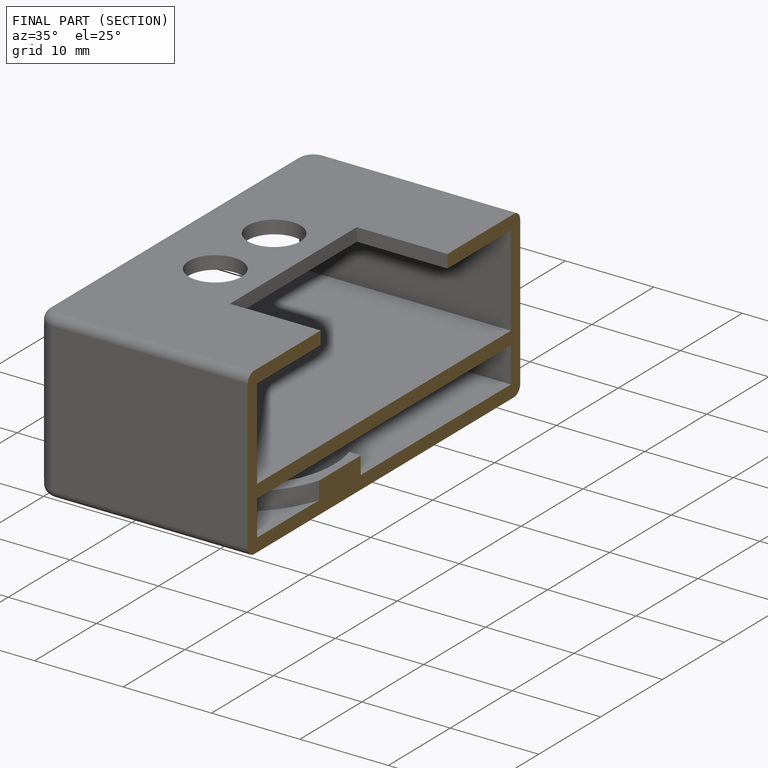
[diagram: finished part — half-section view (interior)]
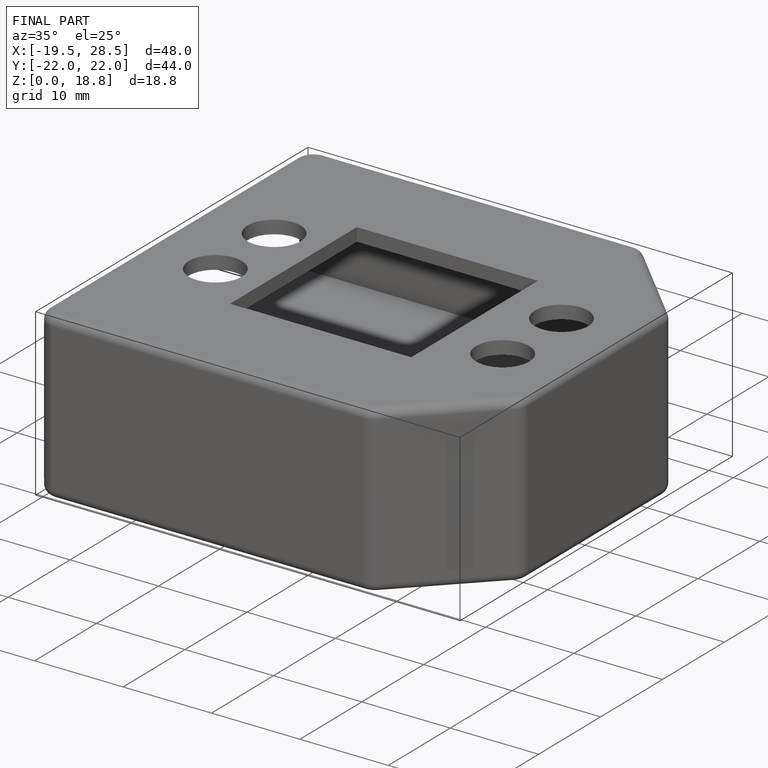
[diagram: finished part — iso view with bounding-box wireframe]
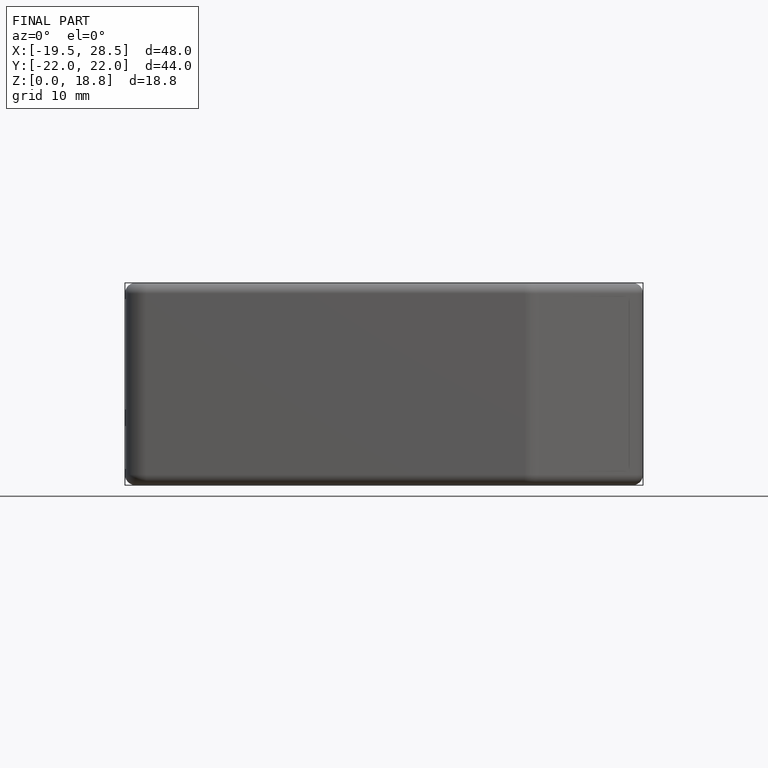
[diagram: finished part — front view with bounding-box wireframe]
